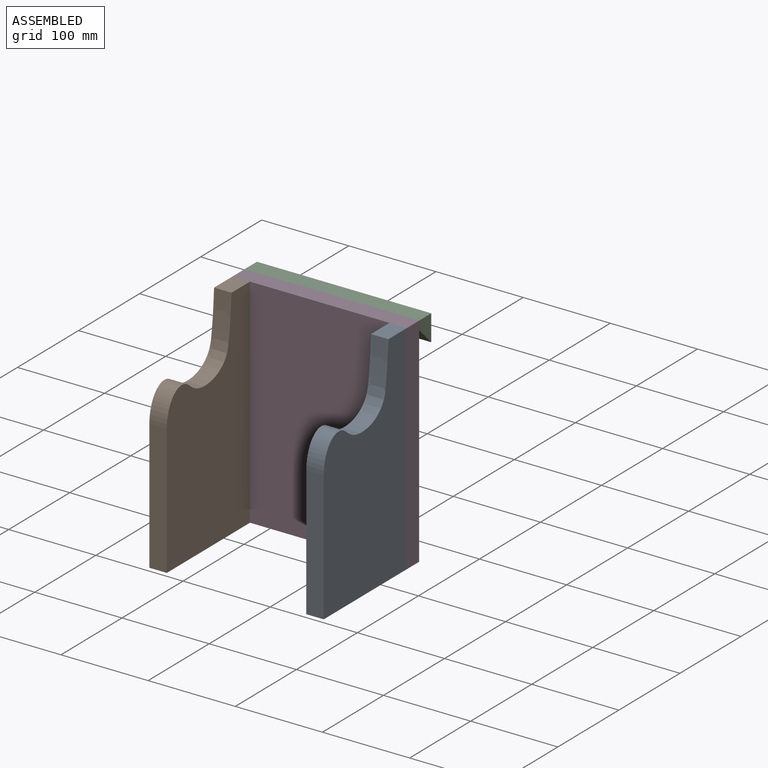
[diagram: assembled view]
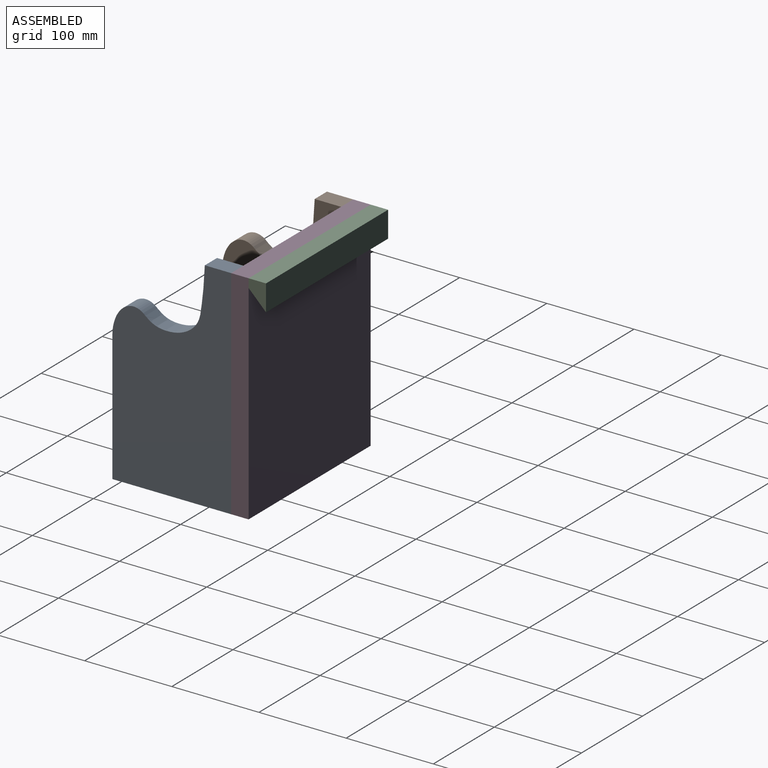
[diagram: assembled view, second angle]
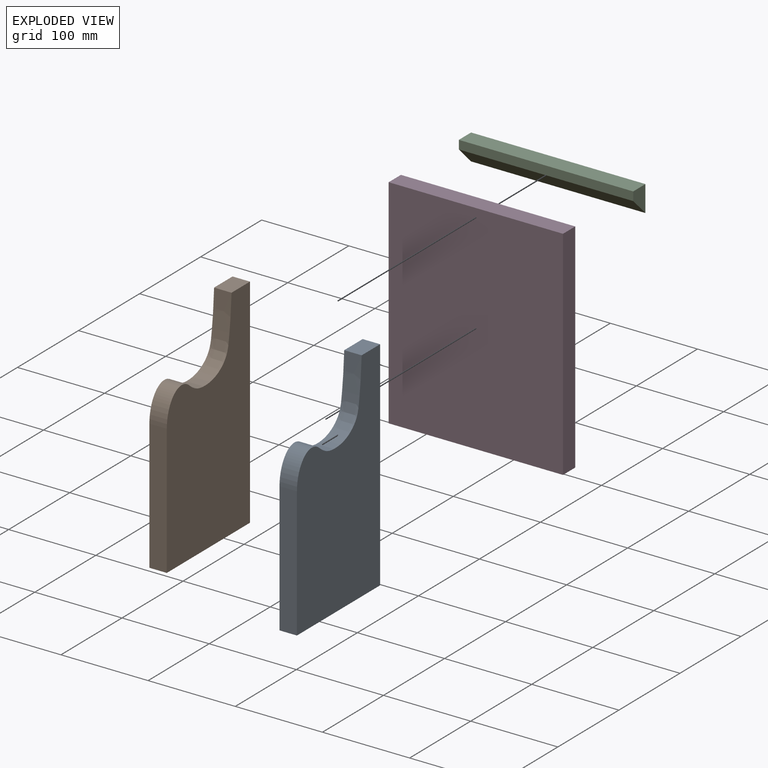
[diagram: exploded view]
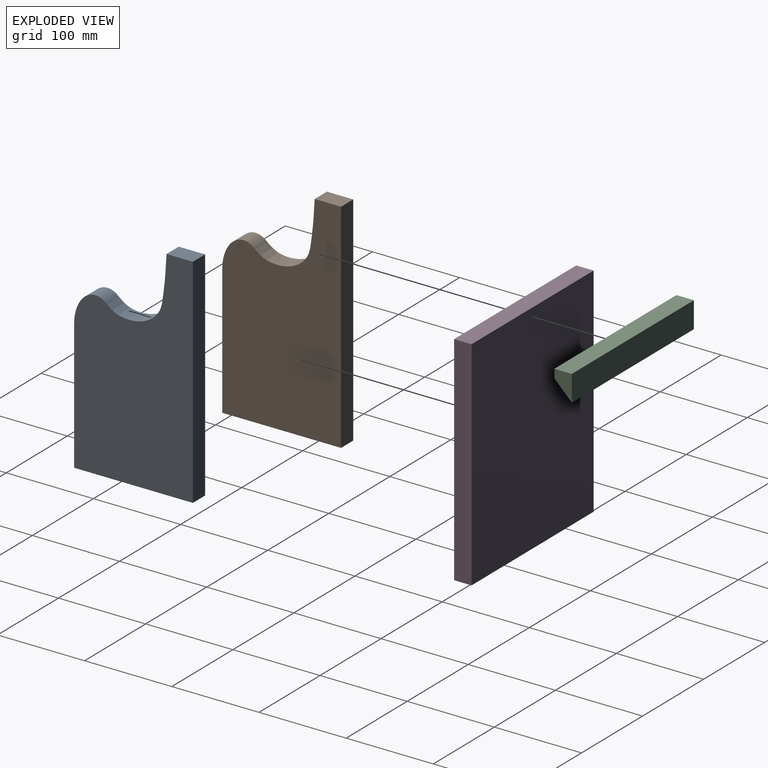
[diagram: exploded view, second angle]
ASSEMBLY  parts=4 mates=3
PART A: 8 faces, bbox 20x136.2x250 mm
  f0: plane 136.24x20mm, normal (0,0,-1), area 2724.8mm2, adj f1,f5,f6,f7
  f1: plane 250x20mm, normal (0,1,0), area 5000mm2, adj f0,f2,f6,f7
  f2: plane 30.21x20mm, normal (0,0,1), area 604.1mm2, adj f1,f3,f6,f7
  f3: extruded ~79.78x68.14mm, area 2619.1mm2, adj f2,f4,f6,f7
  f4: extruded ~37.89x35.98mm, area 1261.1mm2, adj f3,f5,f6,f7
  f5: plane 149.5x20mm, normal (0,-1,0), area 2990mm2, adj f0,f4,f6,f7
  f6: plane 250x136.24mm, normal (1,0,0), area 26525.5mm2, adj f0,f1,f2,f3,f4,f5
  f7: plane 250x136.24mm, normal (-1,0,0), area 26525.5mm2, adj f0,f1,f2,f3,f4,f5
PART B: same geometry as A
PART C: 6 faces, bbox 20x200x30 mm
  f0: plane 200x30mm, normal (1,0,0), area 6000mm2, adj f1,f3,f4,f5
  f1: plane 200x20mm, normal (0,0,1), area 4000mm2, adj f0,f2,f4,f5
  f2: plane 200x10mm, normal (-1,0,0), area 2000mm2, adj f1,f3,f4,f5
  f3: plane 200x20mm, normal (-0.71,0,-0.71), area 5656.9mm2, adj f0,f2,f4,f5
  f4: plane 30x20mm, normal (0,-1,0), area 400mm2, adj f0,f1,f2,f3
  f5: plane 30x20mm, normal (0,1,0), area 400mm2, adj f0,f1,f2,f3
PART D: 6 faces, bbox 200x20x250 mm
  f0: plane 200x20mm, normal (0,0,-1), area 4000mm2, adj f1,f3,f4,f5
  f1: plane 250x20mm, normal (1,0,0), area 5000mm2, adj f0,f2,f4,f5
  f2: plane 200x20mm, normal (0,0,1), area 4000mm2, adj f1,f3,f4,f5
  f3: plane 250x20mm, normal (-1,0,0), area 5000mm2, adj f0,f2,f4,f5
  f4: plane 250x200mm, normal (0,-1,0), area 50000mm2, adj f0,f1,f2,f3
  f5: plane 250x200mm, normal (0,1,0), area 50000mm2, adj f0,f1,f2,f3
PLACE A t=(143.87,47.12,11.87)mm
PLACE B t=(-36.13,47.12,11.87)mm
PLACE C rot(axis=(0,0,1),90deg) t=(-36.13,162.74,121.87)mm
PLACE D t=(63.87,152.74,11.87)mm
MATE fastened C.f2 <-> D.f5  axis (0,-1,0) through (-36.13,152.74,136.87)mm
MATE fastened A.f1 <-> D.f4  axis (0,1,0) through (163.87,132.74,136.87)mm
MATE fastened D.f4 <-> B.f1  axis (0,-1,0) through (-36.13,132.74,136.87)mm
